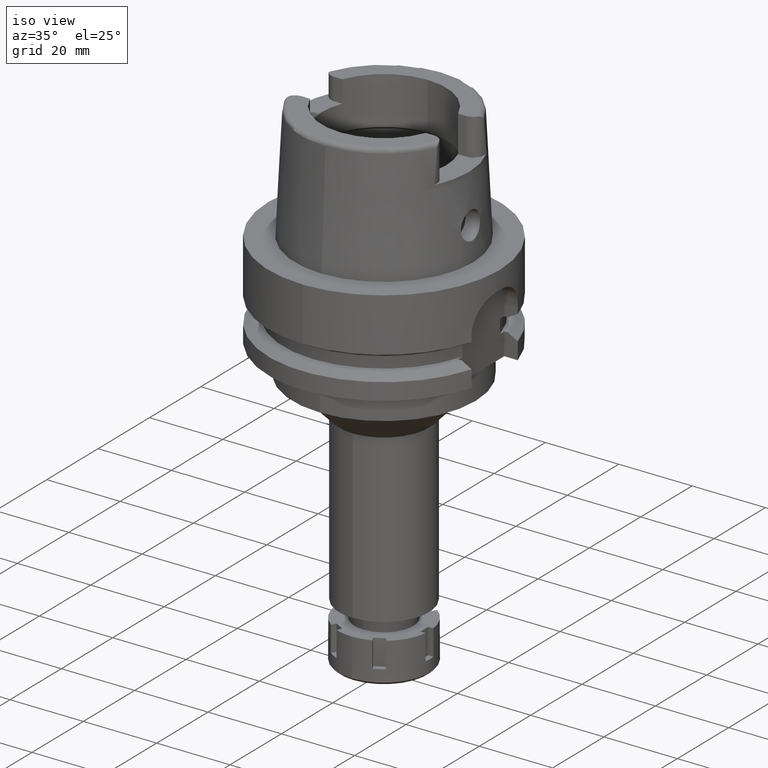
[diagram: clean part render]
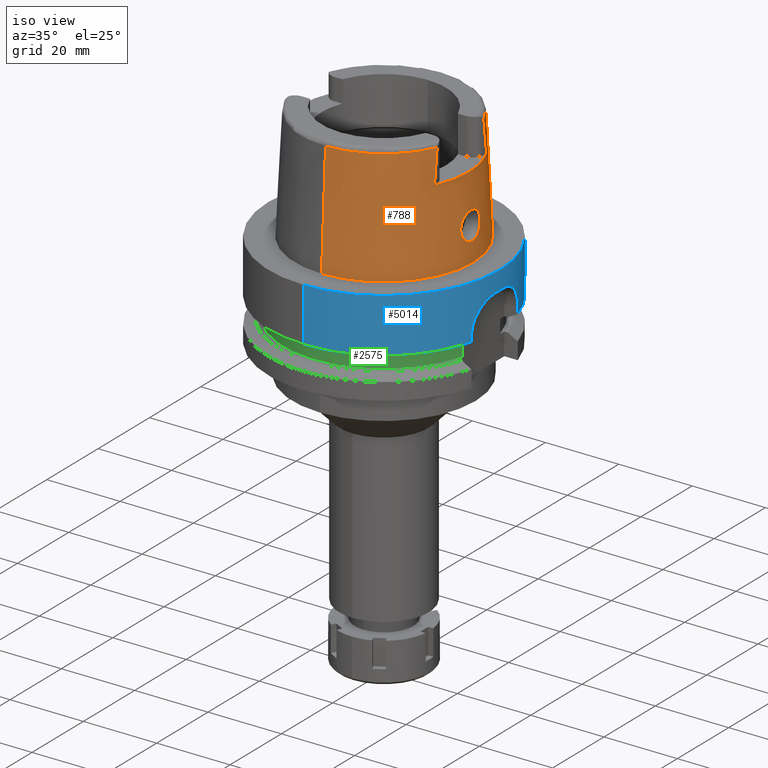
[diagram: same view with three faces highlighted in distinct colors, each labeled with its STEP entity id]
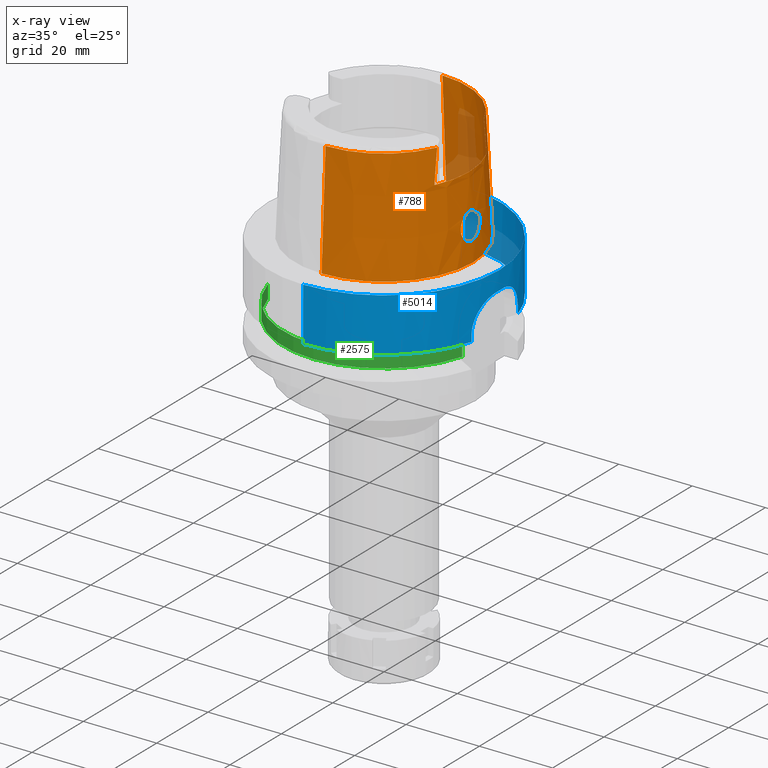
[diagram: x-ray of the same camera — body ghosted, the three highlighted faces saturated]
A machine part, iso view with three faces highlighted in distinct colors.
The next image is the same camera in x-ray (body ghosted, the three faces saturated) — at least one of them is partly hidden behind the body in this view.
Their STEP definitions:

[orange] entity #788 — the highlighted conical surface has half-angle 2.862 deg.
#8 = CIRCLE ( 'NONE', #2491, 22.77198729362000407 ) ;
#28 = CARTESIAN_POINT ( 'NONE',  ( 23.55519943339910682, -3.738331241689983209, 9.301640923586873555 ) ) ;
#56 = CARTESIAN_POINT ( 'NONE',  ( 23.59346375484054192, -2.499029006934169406, 11.79713784507217866 ) ) ;
#87 = CARTESIAN_POINT ( 'NONE',  ( 24.02798104288690340, 0.9484192892176613876, 5.369793361484922478 ) ) ;
#109 = CARTESIAN_POINT ( 'NONE',  ( 20.87000236792000152, -9.149994681381000916, 30.54552122894999755 ) ) ;
#118 = CARTESIAN_POINT ( 'NONE',  ( 23.90984263681423272, 2.248548729215313458, 5.996391628895045400 ) ) ;
#218 = CARTESIAN_POINT ( 'NONE',  ( 23.99476800494585760, -1.442356391557060080, 5.538475348073803595 ) ) ;
#238 = CARTESIAN_POINT ( 'NONE',  ( 23.62274845126830769, 1.989707693370512676, 12.18083538750419414 ) ) ;
#258 = CARTESIAN_POINT ( 'NONE',  ( 23.65921489799462307, -1.129950462299847969, 12.57627948546983632 ) ) ;
#269 = CARTESIAN_POINT ( 'NONE',  ( 23.65772684275554738, 3.565488193654942073, 7.807636789312428327 ) ) ;
#298 = CARTESIAN_POINT ( 'NONE',  ( 23.53964948623935882, 3.466913581508941800, 10.42935265212965668 ) ) ;
#300 = B_SPLINE_CURVE_WITH_KNOTS ( 'NONE', 3,
 ( #3601, #5492, #1834, #897 ),
 .UNSPECIFIED., .F., .F.,
 ( 4, 4 ),
 ( 0.0000000000000000000, 1.000000000000000000 ),
 .UNSPECIFIED. ) ;
#303 = CARTESIAN_POINT ( 'NONE',  ( 0.0000000000000000000, 0.0000000000000000000, 30.85992712280000205 ) ) ;
#308 = B_SPLINE_CURVE_WITH_KNOTS ( 'NONE', 3,
 ( #5896, #2095, #4007, #2623, #4500, #258, #4993, #2155, #4040, #1698, #3578, #2653, #4531, #1833, #4175, #3289, #990, #6069, #3717, #5610, #785, #4262, #4294, #4230, #5168, #56, #5140, #4676, #2681, #5640, #2851, #1965, #2293, #1373, #927, #5904, #2818, #4559, #4766, #524, #3319, #402, #1400, #1925, #3843, #28, #5026, #2880, #3260, #896, #959, #1256, #1865, #2356, #2789, #4700, #3808, #3151, #5701, #433, #2417, #2320, #4202, #6094, #1462, #3748, #462, #1891, #491, #3775, #3350, #5236, #5670, #1430, #5197, #4735, #2386, #2023, #589, #3908, #5791, #5762, #5268, #2113, #1056, #1026, #4394, #1526, #218, #5395, #5728, #3378, #3011 ),
 .UNSPECIFIED., .F., .F.,
 ( 4, 2, 2, 1, 1, 1, 2, 2, 2, 2, 1, 1, 2, 2, 2, 1, 1, 2, 2, 2, 2, 1, 1, 1, 2, 2, 2, 2, 1, 2, 2, 2, 2, 1, 1, 1, 2, 2, 2, 2, 1, 1, 2, 2, 2, 1, 1, 2, 2, 2, 2, 1, 1, 1, 2, 2, 4 ),
 ( 0.0000000000000000000, 0.06249999999999879263, 0.09374999999999820977, 0.1093749999999980294, 0.1171874999999979738, 0.1210937499999979600, 0.1230468749999978906, 0.1249999999999978073, 0.1562499999999984457, 0.1718749999999986677, 0.1796874999999986955, 0.1835937499999987510, 0.1855468749999989453, 0.1874999999999991118, 0.2187499999999998890, 0.2343750000000002498, 0.2421875000000004163, 0.2460937500000005274, 0.2500000000000006106, 0.3125000000000009437, 0.3437500000000011657, 0.3593750000000012768, 0.3671875000000015543, 0.3710937500000017208, 0.3730468750000017764, 0.3750000000000018319, 0.4375000000000006661, 0.4687500000000000555, 0.4843749999999995004, 0.4921874999999990563, 0.4999999999999985567, 0.5624999999999930056, 0.5937499999999902300, 0.6093749999999885647, 0.6171874999999877875, 0.6210937499999873435, 0.6230468749999872324, 0.6249999999999870104, 0.6562499999999845679, 0.6718749999999833467, 0.6796874999999827915, 0.6835937499999825695, 0.6855468749999825695, 0.6874999999999824585, 0.7187499999999837907, 0.7343749999999844569, 0.7421874999999849010, 0.7460937499999851230, 0.7499999999999854561, 0.8124999999999897859, 0.8437499999999918954, 0.8593749999999928946, 0.8671874999999934497, 0.8710937499999936717, 0.8730468749999937828, 0.8749999999999938938, 1.000000000000000000 ),
 .UNSPECIFIED. ) ;
#318 = B_SPLINE_CURVE_WITH_KNOTS ( 'NONE', 3,
 ( #5366, #4059, #1128, #5017 ),
 .UNSPECIFIED., .F., .F.,
 ( 4, 4 ),
 ( 0.0000000000000000000, 1.000000000000000000 ),
 .UNSPECIFIED. ) ;
#330 = CARTESIAN_POINT ( 'NONE',  ( 23.57815872405809188, 2.743184861563106036, 11.55727339859409319 ) ) ;
#360 = CARTESIAN_POINT ( 'NONE',  ( 23.70836361972935791, 3.372653304107593009, 7.358478468461626676 ) ) ;
#402 = CARTESIAN_POINT ( 'NONE',  ( 23.53728703618767781, -3.562162793667870364, 10.19862509189259825 ) ) ;
#417 = LINE ( 'NONE', #2309, #5216 ) ;
#433 = CARTESIAN_POINT ( 'NONE',  ( 23.68191853850887441, -3.475036303287280415, 7.590499738830363441 ) ) ;
#462 = CARTESIAN_POINT ( 'NONE',  ( 23.75046709808644252, -3.189550932065133182, 7.027354285361793629 ) ) ;
#491 = CARTESIAN_POINT ( 'NONE',  ( 23.76036173158187736, -3.142834868265225179, 6.954232104364317379 ) ) ;
#523 = EDGE_CURVE ( 'NONE', #1104, #3131, #3200, .T. ) ;
#524 = CARTESIAN_POINT ( 'NONE',  ( 23.53980010194760908, -3.461088423902705102, 10.44340300401176513 ) ) ;
#528 = LINE ( 'NONE', #5794, #3497 ) ;
#547 = CARTESIAN_POINT ( 'NONE',  ( 20.87000000000000099, 10.16755860605000095, 22.00000000000000000 ) ) ;
#549 = CARTESIAN_POINT ( 'NONE',  ( 23.98800127400897253, 1.527522987969908375, 5.573312713418586917 ) ) ;
#582 = CARTESIAN_POINT ( 'NONE',  ( 24.05252611746999847, 0.0000000000000000000, 5.250000000000000000 ) ) ;
#589 = CARTESIAN_POINT ( 'NONE',  ( 23.84797917728451822, -2.667968593131741617, 6.364710161836378610 ) ) ;
#592 = VERTEX_POINT ( 'NONE', #4219 ) ;
#609 = CARTESIAN_POINT ( 'NONE',  ( 23.85335031705327324, 2.634912400020116063, 6.331705383168054091 ) ) ;
#672 = CARTESIAN_POINT ( 'NONE',  ( 23.86625877099326587, 2.552797420031045927, 6.252677496444333016 ) ) ;
#700 = CARTESIAN_POINT ( 'NONE',  ( 23.59443447677175953, 2.478402184347151760, 11.81692689288334996 ) ) ;
#735 = CARTESIAN_POINT ( 'NONE',  ( 23.56990276822293140, 3.750022173303664275, 8.973271947317876140 ) ) ;
#765 = CARTESIAN_POINT ( 'NONE',  ( 23.67751368057999883, 0.0000000000000000000, 12.75000000000000000 ) ) ;
#785 = CARTESIAN_POINT ( 'NONE',  ( 23.61810204950251801, -2.070512918291412152, 12.12658851466022369 ) ) ;
#788 = ADVANCED_FACE ( 'NONE', ( #878, #3237 ), #5964, .T. ) ;
#791 = CARTESIAN_POINT ( 'NONE',  ( 23.57925637418655995, 3.745618707005629933, 8.803410853152271898 ) ) ;
#822 = CARTESIAN_POINT ( 'NONE',  ( 23.77392755787654721, 3.077891112404721685, 6.856935434953732589 ) ) ;
#828 = ORIENTED_EDGE ( 'NONE', *, *, #3719, .T. ) ;
#845 = CARTESIAN_POINT ( 'NONE',  ( 0.0000000000000000000, 0.0000000000000000000, 15.42996356139999925 ) ) ;
#878 = FACE_OUTER_BOUND ( 'NONE', #6105, .T. ) ;
#896 = CARTESIAN_POINT ( 'NONE',  ( 23.56692017806289385, -3.749964723425761814, 9.032332592619168210 ) ) ;
#897 = CARTESIAN_POINT ( 'NONE',  ( 20.87000000000000099, -10.16755860605000095, 22.00000000000000000 ) ) ;
#920 = CARTESIAN_POINT ( 'NONE',  ( 20.87000000000000099, 9.824931699591571643, 25.00129770862796263 ) ) ;
#927 = CARTESIAN_POINT ( 'NONE',  ( 23.54353521055634957, -3.352100776938812476, 10.68202988764953609 ) ) ;
#959 = CARTESIAN_POINT ( 'NONE',  ( 23.57961124714686818, -3.750259092462481458, 8.780843794698196092 ) ) ;
#974 = ORIENTED_EDGE ( 'NONE', *, *, #2084, .T. ) ;
#990 = CARTESIAN_POINT ( 'NONE',  ( 23.62512480498217471, -1.938118134561423345, 12.21050022046270733 ) ) ;
#1015 = CARTESIAN_POINT ( 'NONE',  ( 20.86974092012000170, 9.111384045666000020, 30.85992712280000205 ) ) ;
#1025 = B_SPLINE_CURVE_WITH_KNOTS ( 'NONE', 3,
 ( #547, #920, #2936, #3836 ),
 .UNSPECIFIED., .F., .F.,
 ( 4, 4 ),
 ( 0.0000000000000000000, 1.000000000000000000 ),
 .UNSPECIFIED. ) ;
#1026 = CARTESIAN_POINT ( 'NONE',  ( 23.98860582613205494, -1.516759723115812752, 5.570243383223264289 ) ) ;
#1043 = ORIENTED_EDGE ( 'NONE', *, *, #2997, .T. ) ;
#1056 = CARTESIAN_POINT ( 'NONE',  ( 23.98098755636505430, -1.604378940289086009, 5.609746447636572597 ) ) ;
#1061 = CARTESIAN_POINT ( 'NONE',  ( 24.05252611746999847, 0.0000000000000000000, 5.250000000000000000 ) ) ;
#1100 = EDGE_CURVE ( 'NONE', #5313, #1638, #528, .T. ) ;
#1104 = VERTEX_POINT ( 'NONE', #1061 ) ;
#1116 = CARTESIAN_POINT ( 'NONE',  ( 24.01746172520843814, 1.126861137765841958, 5.422775681787225466 ) ) ;
#1128 = CARTESIAN_POINT ( 'NONE',  ( 20.86991378048580970, 9.124261431929651778, 30.75528263106000182 ) ) ;
#1145 = CARTESIAN_POINT ( 'NONE',  ( 23.92171013142585423, 2.155953918338985531, 5.929931185348334743 ) ) ;
#1175 = CARTESIAN_POINT ( 'NONE',  ( 23.54163012420013601, 3.388262780187095480, 10.61922573870064213 ) ) ;
#1183 = CARTESIAN_POINT ( 'NONE',  ( 20.86989358601000077, -9.124125165059000508, 30.75511517470000200 ) ) ;
#1202 = CARTESIAN_POINT ( 'NONE',  ( 23.55640515222183851, 3.749812182289677498, 9.240359518197866606 ) ) ;
#1236 = CARTESIAN_POINT ( 'NONE',  ( 23.64574017882521417, 1.497393100549959444, 12.43821287616071025 ) ) ;
#1256 = CARTESIAN_POINT ( 'NONE',  ( 23.59485847199320574, -3.730512227144195059, 8.546709434729841348 ) ) ;
#1266 = CARTESIAN_POINT ( 'NONE',  ( 23.56904104623356488, 2.891966873678280869, 11.38819657138289188 ) ) ;
#1277 = EDGE_CURVE ( 'NONE', #1581, #3596, #318, .T. ) ;
#1294 = CARTESIAN_POINT ( 'NONE',  ( 23.53942295038292443, 3.476486743799036105, 10.40591680542112840 ) ) ;
#1373 = CARTESIAN_POINT ( 'NONE',  ( 23.54704533724012094, -3.272407711175973066, 10.83495624433837357 ) ) ;
#1400 = CARTESIAN_POINT ( 'NONE',  ( 23.53848364325384068, -3.633218472931419196, 9.960076488715310816 ) ) ;
#1430 = CARTESIAN_POINT ( 'NONE',  ( 23.81419400155129651, -2.864590717829285982, 6.579167763752566067 ) ) ;
#1462 = CARTESIAN_POINT ( 'NONE',  ( 23.73360334670976712, -3.266064281962144378, 7.156170873759588602 ) ) ;
#1489 = CARTESIAN_POINT ( 'NONE',  ( 0.0000000000000000000, 24.31503482328999866, -6.821210263297000155E-13 ) ) ;
#1518 = CARTESIAN_POINT ( 'NONE',  ( 23.94783878495383789, 1.932796562545873620, 5.786311759653081310 ) ) ;
#1526 = CARTESIAN_POINT ( 'NONE',  ( 23.99376232489585803, -1.454714420716624490, 5.543650649844929390 ) ) ;
#1550 = CARTESIAN_POINT ( 'NONE',  ( 23.85944225581079436, 2.596529477133404651, 6.294253392062179486 ) ) ;
#1581 = VERTEX_POINT ( 'NONE', #2354 ) ;
#1610 = CARTESIAN_POINT ( 'NONE',  ( 23.93539030642344301, 2.041482123567275320, 5.854381392037769416 ) ) ;
#1611 = AXIS2_PLACEMENT_3D ( 'NONE', #4915, #2595, #2567 ) ;
#1638 = VERTEX_POINT ( 'NONE', #1489 ) ;
#1641 = CARTESIAN_POINT ( 'NONE',  ( 24.04785086516845283, 0.4709064811435271225, 5.271751952135787178 ) ) ;
#1677 = CARTESIAN_POINT ( 'NONE',  ( 23.63588982970169283, 1.723546054593428467, 12.33101691913684839 ) ) ;
#1698 = CARTESIAN_POINT ( 'NONE',  ( 23.64944363401251337, -1.405229500639134654, 12.47676545091688993 ) ) ;
#1703 = CARTESIAN_POINT ( 'NONE',  ( 23.60564574464255827, 2.288006486578824994, 11.97174863408324441 ) ) ;
#1733 = CARTESIAN_POINT ( 'NONE',  ( 23.57441532620160274, 3.748477401917841956, 8.889409879793024771 ) ) ;
#1742 = ORIENTED_EDGE ( 'NONE', *, *, #4643, .F. ) ;
#1763 = CARTESIAN_POINT ( 'NONE',  ( 23.82423346818682219, 2.811399674941153393, 6.515293080833769679 ) ) ;
#1779 = CARTESIAN_POINT ( 'NONE',  ( 0.0000000000000000000, 0.0000000000000000000, 30.85992712280000205 ) ) ;
#1780 = EDGE_LOOP ( 'NONE', ( #2761, #5303 ) ) ;
#1829 = VERTEX_POINT ( 'NONE', #2573 ) ;
#1833 = CARTESIAN_POINT ( 'NONE',  ( 23.64000542611390188, -1.632459002181276153, 12.37826995487776394 ) ) ;
#1834 = CARTESIAN_POINT ( 'NONE',  ( 20.87000000000000099, -9.824613402788342498, 25.00316005336368619 ) ) ;
#1865 = CARTESIAN_POINT ( 'NONE',  ( 23.62367872108690392, -3.662746688643967907, 8.186544317011385630 ) ) ;
#1891 = CARTESIAN_POINT ( 'NONE',  ( 23.75735871023149670, -3.157136749706495937, 6.976260688039289448 ) ) ;
#1925 = CARTESIAN_POINT ( 'NONE',  ( 23.54564860213842437, -3.703546419536261070, 9.600936562707467203 ) ) ;
#1965 = CARTESIAN_POINT ( 'NONE',  ( 23.56103841948513278, -3.012444345104958288, 11.24675570380215106 ) ) ;
#1988 = CARTESIAN_POINT ( 'NONE',  ( 24.01176376146593938, 1.215884406456121392, 5.451618183784872507 ) ) ;
#2005 = ORIENTED_EDGE ( 'NONE', *, *, #1100, .F. ) ;
#2016 = CARTESIAN_POINT ( 'NONE',  ( 23.88991961688548216, 2.392568807856174651, 6.111765563820938496 ) ) ;
#2023 = CARTESIAN_POINT ( 'NONE',  ( 23.84643334698845152, -2.677278026435293778, 6.374181953616795404 ) ) ;
#2026 = DIRECTION ( 'NONE',  ( -8.032179027593385064E-05, 0.04993928193351242217, -0.9987522523971473776 ) ) ;
#2043 = CARTESIAN_POINT ( 'NONE',  ( 0.0000000000000000000, 0.0000000000000000000, 22.00000000000000000 ) ) ;
#2084 = EDGE_CURVE ( 'NONE', #5313, #3596, #5772, .T. ) ;
#2095 = CARTESIAN_POINT ( 'NONE',  ( 23.67751368058000239, -0.2267582108981443245, 12.75000000000000000 ) ) ;
#2113 = CARTESIAN_POINT ( 'NONE',  ( 23.97386257259308451, -1.680483590769746849, 5.647122221902983519 ) ) ;
#2133 = CARTESIAN_POINT ( 'NONE',  ( 23.62814392043167189, 1.886050207408843216, 12.24352485525471046 ) ) ;
#2155 = CARTESIAN_POINT ( 'NONE',  ( 23.65237191575695519, -1.328823208043429016, 12.50693721827285820 ) ) ;
#2161 = CARTESIAN_POINT ( 'NONE',  ( 23.53836951445197556, 3.543614093444141577, 10.22970631823663368 ) ) ;
#2221 = CARTESIAN_POINT ( 'NONE',  ( 23.68874658704037373, 3.449621150213538545, 7.529035037354002036 ) ) ;
#2249 = CARTESIAN_POINT ( 'NONE',  ( 23.53935252858930127, 3.626613101976408071, 9.962103618107390091 ) ) ;
#2293 = CARTESIAN_POINT ( 'NONE',  ( 23.55004724232763991, -3.212793599421871704, 10.93791519905914278 ) ) ;
#2295 = CIRCLE ( 'NONE', #5758, 23.21499834174998966 ) ;
#2309 = CARTESIAN_POINT ( 'NONE',  ( -0.002481821280835999795, -22.77198688789000158, 30.85992712280000205 ) ) ;
#2319 = ORIENTED_EDGE ( 'NONE', *, *, #3581, .F. ) ;
#2320 = CARTESIAN_POINT ( 'NONE',  ( 23.69426230383480458, -3.429249356158954765, 7.478958277970793489 ) ) ;
#2354 = CARTESIAN_POINT ( 'NONE',  ( 20.86999175384000083, 9.150018522194999449, 30.54599590695999822 ) ) ;
#2356 = CARTESIAN_POINT ( 'NONE',  ( 23.63427703942218017, -3.633806297221627180, 8.065028700740112910 ) ) ;
#2386 = CARTESIAN_POINT ( 'NONE',  ( 23.84284296291814087, -2.698793877948102882, 6.396300776223411866 ) ) ;
#2417 = CARTESIAN_POINT ( 'NONE',  ( 23.68294560506167912, -3.471240225863138740, 7.581185862655159369 ) ) ;
#2474 = CARTESIAN_POINT ( 'NONE',  ( 23.96237037192497610, 1.797043532036138869, 5.708060873857260020 ) ) ;
#2491 = AXIS2_PLACEMENT_3D ( 'NONE', #1779, #2705, #4586 ) ;
#2505 = CARTESIAN_POINT ( 'NONE',  ( 23.83840239716866805, 2.728042604137035809, 6.424049659542041546 ) ) ;
#2560 = CARTESIAN_POINT ( 'NONE',  ( 20.86974110888999689, -9.111383544770999876, 30.85992740332000039 ) ) ;
#2567 = DIRECTION ( 'NONE',  ( 0.0000000000000000000, -1.000000000000000000, 0.0000000000000000000 ) ) ;
#2568 = CARTESIAN_POINT ( 'NONE',  ( 0.0000000000000000000, -22.77198729362000051, 30.85992712280000205 ) ) ;
#2569 = CARTESIAN_POINT ( 'NONE',  ( 24.05252611746998781, 0.2328538954987698362, 5.249999999999999112 ) ) ;
#2573 = CARTESIAN_POINT ( 'NONE',  ( 20.87000000000000099, 10.16755860605000095, 22.00000000000000000 ) ) ;
#2595 = DIRECTION ( 'NONE',  ( 0.0000000000000000000, 0.0000000000000000000, 1.000000000000000000 ) ) ;
#2597 = CARTESIAN_POINT ( 'NONE',  ( 23.58277595341658284, 2.668648057610286450, 11.63455852612283614 ) ) ;
#2623 = CARTESIAN_POINT ( 'NONE',  ( 23.66775432986779748, -0.8248731854265669572, 12.66021305973280420 ) ) ;
#2630 = CARTESIAN_POINT ( 'NONE',  ( 23.58199281999337771, 2.681269565241152009, 11.62171215076430641 ) ) ;
#2653 = CARTESIAN_POINT ( 'NONE',  ( 23.64847108999223835, -1.429874665238398013, 12.46669859167355021 ) ) ;
#2681 = CARTESIAN_POINT ( 'NONE',  ( 23.58503982527171416, -2.633019622727293729, 11.67019554553824001 ) ) ;
#2686 = CARTESIAN_POINT ( 'NONE',  ( 23.80282962696074023, 2.929384204735898223, 6.657988613894720409 ) ) ;
#2705 = DIRECTION ( 'NONE',  ( 0.0000000000000000000, 0.0000000000000000000, -1.000000000000000000 ) ) ;
#2714 = CARTESIAN_POINT ( 'NONE',  ( 23.53956094309466707, 3.470545105274916775, 10.42052061436232080 ) ) ;
#2761 = ORIENTED_EDGE ( 'NONE', *, *, #523, .F. ) ;
#2789 = CARTESIAN_POINT ( 'NONE',  ( 23.65166186988112429, -3.579951962090423212, 7.881742948528048132 ) ) ;
#2818 = CARTESIAN_POINT ( 'NONE',  ( 23.54070462236834516, -3.429160251889746380, 10.51811060055909053 ) ) ;
#2851 = CARTESIAN_POINT ( 'NONE',  ( 23.57101315345009951, -2.850032741580265316, 11.45279781885572135 ) ) ;
#2880 = CARTESIAN_POINT ( 'NONE',  ( 23.56264163504646802, -3.748102060869566099, 9.122931130130035982 ) ) ;
#2916 = VERTEX_POINT ( 'NONE', #2568 ) ;
#2936 = CARTESIAN_POINT ( 'NONE',  ( 20.87000000000000099, 9.485745710466582992, 27.84996233038690150 ) ) ;
#2970 = CARTESIAN_POINT ( 'NONE',  ( 23.85647116298900272, 2.615315025993695031, 6.312491096198701079 ) ) ;
#2997 = EDGE_CURVE ( 'NONE', #4965, #2916, #8, .T. ) ;
#3003 = CARTESIAN_POINT ( 'NONE',  ( 24.00434910351895113, 1.319166372579798630, 5.489439048842177371 ) ) ;
#3011 = CARTESIAN_POINT ( 'NONE',  ( 24.05252611746999847, 0.0000000000000000000, 5.250000000000000000 ) ) ;
#3068 = CARTESIAN_POINT ( 'NONE',  ( 23.63419888010048808, 3.637686758691171640, 8.056254483639017749 ) ) ;
#3075 = CARTESIAN_POINT ( 'NONE',  ( 20.87000236792000152, -9.145647407158000064, 30.58043143532999864 ) ) ;
#3097 = CARTESIAN_POINT ( 'NONE',  ( 23.60282309467923767, 2.336323255032637380, 11.93391500810781203 ) ) ;
#3126 = CARTESIAN_POINT ( 'NONE',  ( 23.66771081689833167, 0.9493654053532081250, 12.66637542139171124 ) ) ;
#3131 = VERTEX_POINT ( 'NONE', #4207 ) ;
#3151 = CARTESIAN_POINT ( 'NONE',  ( 23.67772732152643300, -3.490395462164130880, 7.628826932109240566 ) ) ;
#3158 = CARTESIAN_POINT ( 'NONE',  ( 23.63967596071794830, 1.640542193366385293, 12.37312669075879512 ) ) ;
#3183 = CARTESIAN_POINT ( 'NONE',  ( 23.54084170259682551, 3.656267589100001381, 9.842144795777834076 ) ) ;
#3200 = B_SPLINE_CURVE_WITH_KNOTS ( 'NONE', 3,
 ( #582, #2569, #1641, #3961, #87, #1116, #1988, #3003, #3435, #5844, #3988, #549, #3868, #2474, #4885, #1518, #5327, #4917, #1610, #4354, #5387, #1145, #118, #2016, #3903, #5786, #672, #1550, #2970, #4447, #609, #2505, #1763, #2686, #4595, #4048, #822, #4566, #3643, #4016, #360, #3557, #5033, #2221, #269, #3068, #5532, #5421, #4104, #791, #1733, #4479, #735, #1202, #5477, #3183, #2249, #3611, #2161, #5504, #5060, #1294, #2714, #298, #1175, #4132, #5997, #5907, #1266, #5937, #3585, #330, #6023, #2630, #2597, #3527, #5451, #700, #3097, #1703, #4946, #5969, #238, #2133, #1677, #3158, #4975, #1236, #4509, #3126, #5001, #765 ),
 .UNSPECIFIED., .F., .F.,
 ( 4, 2, 2, 1, 1, 2, 2, 2, 2, 1, 1, 2, 2, 2, 2, 1, 1, 2, 2, 2, 2, 2, 2, 1, 2, 2, 2, 2, 1, 2, 2, 2, 2, 1, 1, 1, 2, 2, 2, 2, 2, 1, 1, 2, 2, 2, 2, 2, 2, 1, 2, 2, 4 ),
 ( 0.0000000000000000000, 0.06249999999999883427, 0.09374999999999827915, 0.1093749999999979738, 0.1171874999999977657, 0.1210937499999976130, 0.1249999999999974742, 0.1562499999999961420, 0.1718749999999955036, 0.1796874999999950873, 0.1835937499999948930, 0.1855468749999948652, 0.1874999999999948652, 0.2187499999999934774, 0.2343749999999928113, 0.2421874999999923395, 0.2460937499999922007, 0.2480468749999921174, 0.2499999999999920619, 0.2812499999999915623, 0.2968749999999912292, 0.3124999999999909517, 0.3437499999999903966, 0.3593749999999901745, 0.3671874999999901190, 0.3749999999999900080, 0.4374999999999901190, 0.4687499999999901745, 0.4843749999999899525, 0.4921874999999901190, 0.4999999999999902300, 0.5624999999999902300, 0.5937499999999902300, 0.6093749999999903411, 0.6171874999999904521, 0.6210937499999907851, 0.6230468749999908962, 0.6249999999999911182, 0.6874999999999986677, 0.7187500000000024425, 0.7343750000000044409, 0.7421875000000051070, 0.7460937500000054401, 0.7480468750000053291, 0.7500000000000053291, 0.7812500000000043299, 0.7968750000000037748, 0.8125000000000032196, 0.8437500000000025535, 0.8593750000000022204, 0.8671875000000021094, 0.8750000000000021094, 1.000000000000000000 ),
 .UNSPECIFIED. ) ;
#3237 = FACE_BOUND ( 'NONE', #1780, .T. ) ;
#3260 = CARTESIAN_POINT ( 'NONE',  ( 23.56540205894376783, -3.749578434525936643, 9.063582110595245211 ) ) ;
#3289 = CARTESIAN_POINT ( 'NONE',  ( 23.62951506729305962, -1.851956551722030442, 12.26147377836487706 ) ) ;
#3319 = CARTESIAN_POINT ( 'NONE',  ( 23.53974494334682532, -3.463226986291149778, 10.43826999061943361 ) ) ;
#3350 = CARTESIAN_POINT ( 'NONE',  ( 23.76351885938688469, -3.127711547397547864, 6.931188750232979423 ) ) ;
#3378 = CARTESIAN_POINT ( 'NONE',  ( 24.05252611746999136, -0.4680684061980205368, 5.249999999999997335 ) ) ;
#3390 = ORIENTED_EDGE ( 'NONE', *, *, #3704, .T. ) ;
#3435 = CARTESIAN_POINT ( 'NONE',  ( 24.00100702863153401, 1.363280311615235885, 5.506546671591251219 ) ) ;
#3497 = VECTOR ( 'NONE', #2026, 1000.000000000000000 ) ;
#3527 = CARTESIAN_POINT ( 'NONE',  ( 23.58323067707592458, 2.661324392408498163, 11.64195217311753972 ) ) ;
#3557 = CARTESIAN_POINT ( 'NONE',  ( 23.69842751701850503, 3.412132144833142533, 7.444092624480780351 ) ) ;
#3565 = CARTESIAN_POINT ( 'NONE',  ( 0.002481821280839999633, 22.77198688789000158, 30.85992712280000205 ) ) ;
#3578 = CARTESIAN_POINT ( 'NONE',  ( 23.64884320520893368, -1.420500984177679449, 12.47055397654410314 ) ) ;
#3581 = EDGE_CURVE ( 'NONE', #1829, #1581, #1025, .T. ) ;
#3585 = CARTESIAN_POINT ( 'NONE',  ( 23.57596720349302544, 2.778757304994551536, 11.51837602191028864 ) ) ;
#3596 = VERTEX_POINT ( 'NONE', #1015 ) ;
#3601 = CARTESIAN_POINT ( 'NONE',  ( 20.87000236792000152, -9.149994681381000916, 30.54552122894999755 ) ) ;
#3611 = CARTESIAN_POINT ( 'NONE',  ( 23.53847169750921964, 3.572829680165428456, 10.14072545661941227 ) ) ;
#3643 = CARTESIAN_POINT ( 'NONE',  ( 23.73884366784988487, 3.242280468077175737, 7.111764599764114791 ) ) ;
#3661 = ORIENTED_EDGE ( 'NONE', *, *, #5240, .F. ) ;
#3704 = EDGE_CURVE ( 'NONE', #1829, #4074, #2295, .T. ) ;
#3717 = CARTESIAN_POINT ( 'NONE',  ( 23.62011333325976992, -2.033338157716948036, 12.15096550055626423 ) ) ;
#3719 = EDGE_CURVE ( 'NONE', #592, #1638, #4257, .T. ) ;
#3748 = CARTESIAN_POINT ( 'NONE',  ( 23.74475789511510371, -3.215732753567722035, 7.070580840563122749 ) ) ;
#3775 = CARTESIAN_POINT ( 'NONE',  ( 23.76237473987955440, -3.133208081980926263, 6.939518404108703464 ) ) ;
#3808 = CARTESIAN_POINT ( 'NONE',  ( 23.67195180264777932, -3.511207508438416003, 7.682499030869834655 ) ) ;
#3836 = CARTESIAN_POINT ( 'NONE',  ( 20.86999175384000083, 9.150018522194999449, 30.54599590695999822 ) ) ;
#3840 = ORIENTED_EDGE ( 'NONE', *, *, #1277, .F. ) ;
#3843 = CARTESIAN_POINT ( 'NONE',  ( 23.54893192981416661, -3.720964223279306538, 9.480994934054669088 ) ) ;
#3868 = CARTESIAN_POINT ( 'NONE',  ( 23.97843536754702143, 1.634845050901289287, 5.622916002733579610 ) ) ;
#3903 = CARTESIAN_POINT ( 'NONE',  ( 23.88292498057402469, 2.441421214926860372, 6.152838082457372515 ) ) ;
#3908 = CARTESIAN_POINT ( 'NONE',  ( 23.88277812629276298, -2.456992568095625273, 6.153110915899230982 ) ) ;
#3961 = CARTESIAN_POINT ( 'NONE',  ( 24.03382510826383012, 0.8289347581739079374, 5.340746145484334129 ) ) ;
#3988 = CARTESIAN_POINT ( 'NONE',  ( 23.99747581683183384, 1.408776846208430245, 5.524650936406791502 ) ) ;
#4007 = CARTESIAN_POINT ( 'NONE',  ( 23.67507384290195205, -0.4630816054414778060, 12.72939098049522499 ) ) ;
#4014 = DIRECTION ( 'NONE',  ( 0.8989877876694615244, 0.4379736951246811505, 0.0000000000000000000 ) ) ;
#4016 = CARTESIAN_POINT ( 'NONE',  ( 23.71845473936051718, 3.330359980197542757, 7.275172097746182232 ) ) ;
#4040 = CARTESIAN_POINT ( 'NONE',  ( 23.65033712925594145, -1.382317070923071212, 12.48599675252301111 ) ) ;
#4048 = CARTESIAN_POINT ( 'NONE',  ( 23.78130041260691030, 3.041403257075681932, 6.805421366311447784 ) ) ;
#4059 = CARTESIAN_POINT ( 'NONE',  ( 20.87000008276668694, 9.137139977363153420, 30.65063926901000357 ) ) ;
#4074 = VERTEX_POINT ( 'NONE', #4315 ) ;
#4104 = CARTESIAN_POINT ( 'NONE',  ( 23.58466627045879349, 3.739699553798095266, 8.716042274838070369 ) ) ;
#4110 = DIRECTION ( 'NONE',  ( 0.0000000000000000000, 0.0000000000000000000, -1.000000000000000000 ) ) ;
#4127 = DIRECTION ( 'NONE',  ( 0.0000000000000000000, 0.0000000000000000000, -1.000000000000000000 ) ) ;
#4132 = CARTESIAN_POINT ( 'NONE',  ( 23.54624522311891610, 3.288668755627062179, 10.81848865005207294 ) ) ;
#4175 = CARTESIAN_POINT ( 'NONE',  ( 23.63226805064198288, -1.795866489624349249, 12.29258957689876652 ) ) ;
#4202 = CARTESIAN_POINT ( 'NONE',  ( 23.70632055464385246, -3.382145758896426546, 7.375591754896430707 ) ) ;
#4207 = CARTESIAN_POINT ( 'NONE',  ( 23.67751368057999883, 0.0000000000000000000, 12.75000000000000000 ) ) ;
#4219 = CARTESIAN_POINT ( 'NONE',  ( 0.0000000000000000000, -24.31503482328999866, -3.801403636316999971E-13 ) ) ;
#4230 = CARTESIAN_POINT ( 'NONE',  ( 23.60608482393553942, -2.286616205226363885, 11.97473154672317541 ) ) ;
#4257 = CIRCLE ( 'NONE', #1611, 24.31503482328999866 ) ;
#4262 = CARTESIAN_POINT ( 'NONE',  ( 23.61763600389896212, -2.079060479096733527, 12.12090798815471260 ) ) ;
#4294 = CARTESIAN_POINT ( 'NONE',  ( 23.61168808906530359, -2.187719735153621947, 12.04820009275881354 ) ) ;
#4315 = CARTESIAN_POINT ( 'NONE',  ( 20.87000000000000099, -10.16755860605000095, 22.00000000000000000 ) ) ;
#4354 = CARTESIAN_POINT ( 'NONE',  ( 23.93378341054934566, 2.055060094668907933, 5.863235154669319549 ) ) ;
#4394 = CARTESIAN_POINT ( 'NONE',  ( 23.99224140819047690, -1.473276549652505762, 5.551482490765188516 ) ) ;
#4447 = CARTESIAN_POINT ( 'NONE',  ( 23.85447938351401120, 2.627846983341488585, 6.324743558956881451 ) ) ;
#4479 = CARTESIAN_POINT ( 'NONE',  ( 23.57131437160877496, 3.749725655220193854, 8.946422785070438977 ) ) ;
#4488 = CARTESIAN_POINT ( 'NONE',  ( 20.87000236792000152, -9.149994681381000916, 30.54552122894999755 ) ) ;
#4500 = CARTESIAN_POINT ( 'NONE',  ( 23.66470453277023367, -0.9466574754397447666, 12.63078388863482715 ) ) ;
#4509 = CARTESIAN_POINT ( 'NONE',  ( 23.64687973157479561, 1.469569914914745423, 12.45021192470075100 ) ) ;
#4531 = CARTESIAN_POINT ( 'NONE',  ( 23.64446824366192956, -1.530044846406797276, 12.42518288873786680 ) ) ;
#4559 = CARTESIAN_POINT ( 'NONE',  ( 23.54015134852421909, -3.448010423306683503, 10.47446388218021163 ) ) ;
#4566 = CARTESIAN_POINT ( 'NONE',  ( 23.75271187247889770, 3.178904161253136351, 7.007106111034716811 ) ) ;
#4586 = DIRECTION ( 'NONE',  ( 0.9164655183265837390, -0.4001136759951928745, 0.0000000000000000000 ) ) ;
#4595 = CARTESIAN_POINT ( 'NONE',  ( 23.79566993859317847, 2.967537881683025347, 6.706524891704926716 ) ) ;
#4605 = CARTESIAN_POINT ( 'NONE',  ( 20.86997922117000215, -9.137001282772999389, 30.65041084578000152 ) ) ;
#4643 = EDGE_CURVE ( 'NONE', #4812, #4074, #300, .T. ) ;
#4676 = CARTESIAN_POINT ( 'NONE',  ( 23.58644423555615433, -2.611026790540400988, 11.69170497717702339 ) ) ;
#4700 = CARTESIAN_POINT ( 'NONE',  ( 23.66072612334960823, -3.550415313412851326, 7.789850362978726572 ) ) ;
#4723 = DIRECTION ( 'NONE',  ( 8.032179027582384478E-05, -0.04993928193351242217, -0.9987522523971473776 ) ) ;
#4735 = CARTESIAN_POINT ( 'NONE',  ( 23.83745983003889535, -2.730862899668507371, 6.429678184190200874 ) ) ;
#4766 = CARTESIAN_POINT ( 'NONE',  ( 23.53993749829405502, -3.455884301027504879, 10.45581901621565812 ) ) ;
#4812 = VERTEX_POINT ( 'NONE', #109 ) ;
#4849 = ORIENTED_EDGE ( 'NONE', *, *, #6011, .T. ) ;
#4870 = AXIS2_PLACEMENT_3D ( 'NONE', #845, #4127, #5210 ) ;
#4885 = CARTESIAN_POINT ( 'NONE',  ( 23.95672935072942877, 1.851309033720620612, 5.738231538720552471 ) ) ;
#4915 = CARTESIAN_POINT ( 'NONE',  ( 0.0000000000000000000, 0.0000000000000000000, -6.821210263297000155E-13 ) ) ;
#4917 = CARTESIAN_POINT ( 'NONE',  ( 23.93778724292263504, 2.021111643302681671, 5.841192553100023055 ) ) ;
#4946 = CARTESIAN_POINT ( 'NONE',  ( 23.61134393255749941, 2.189575038564256282, 12.04499996343164980 ) ) ;
#4965 = VERTEX_POINT ( 'NONE', #2560 ) ;
#4973 = DIRECTION ( 'NONE',  ( 0.0000000000000000000, 0.0000000000000000000, -1.000000000000000000 ) ) ;
#4975 = CARTESIAN_POINT ( 'NONE',  ( 23.64333185630606948, 1.554986753244104181, 12.41255184233255626 ) ) ;
#4993 = CARTESIAN_POINT ( 'NONE',  ( 23.65624134582449756, -1.221748073562828552, 12.54643866987770728 ) ) ;
#5001 = CARTESIAN_POINT ( 'NONE',  ( 23.67751368058001304, 0.4543756190881092505, 12.75000000000000355 ) ) ;
#5017 = CARTESIAN_POINT ( 'NONE',  ( 20.86974092012000170, 9.111384045666000020, 30.85992712280000205 ) ) ;
#5026 = CARTESIAN_POINT ( 'NONE',  ( 23.55866881320941175, -3.744826203426357303, 9.212102494771301053 ) ) ;
#5033 = CARTESIAN_POINT ( 'NONE',  ( 23.69183789674911722, 3.437804351436141825, 7.501669336813312938 ) ) ;
#5060 = CARTESIAN_POINT ( 'NONE',  ( 23.53922653108039853, 3.485325964180100211, 10.38399322218661958 ) ) ;
#5067 = EDGE_CURVE ( 'NONE', #3131, #1104, #308, .T. ) ;
#5097 = DIRECTION ( 'NONE',  ( 0.0000000000000000000, 1.000000000000000000, 0.0000000000000000000 ) ) ;
#5140 = CARTESIAN_POINT ( 'NONE',  ( 23.58855060593720410, -2.577839038535194582, 11.72376616001229266 ) ) ;
#5168 = CARTESIAN_POINT ( 'NONE',  ( 23.59767208478201894, -2.429186587014348753, 11.85750553573183375 ) ) ;
#5197 = CARTESIAN_POINT ( 'NONE',  ( 23.82491628923761340, -2.804240230071263440, 6.508935229224912078 ) ) ;
#5210 = DIRECTION ( 'NONE',  ( 0.0000000000000000000, -1.000000000000000000, 0.0000000000000000000 ) ) ;
#5216 = VECTOR ( 'NONE', #4723, 1000.000000000000000 ) ;
#5236 = CARTESIAN_POINT ( 'NONE',  ( 23.77857031745603322, -3.055137140846010624, 6.821956878852279971 ) ) ;
#5240 = EDGE_CURVE ( 'NONE', #4965, #4812, #5628, .T. ) ;
#5268 = CARTESIAN_POINT ( 'NONE',  ( 23.95881922070590164, -1.833683762657124072, 5.726872774641920572 ) ) ;
#5303 = ORIENTED_EDGE ( 'NONE', *, *, #5067, .F. ) ;
#5313 = VERTEX_POINT ( 'NONE', #3565 ) ;
#5327 = CARTESIAN_POINT ( 'NONE',  ( 23.94328624357046564, 1.973562329397223314, 5.811057781862602134 ) ) ;
#5366 = CARTESIAN_POINT ( 'NONE',  ( 20.86999175384000083, 9.150018522194999449, 30.54599590695999822 ) ) ;
#5384 = AXIS2_PLACEMENT_3D ( 'NONE', #303, #4110, #5097 ) ;
#5387 = CARTESIAN_POINT ( 'NONE',  ( 23.93281641835938700, 2.063176751936310449, 5.868571491781304772 ) ) ;
#5395 = CARTESIAN_POINT ( 'NONE',  ( 23.99516998806232948, -1.437390867898680424, 5.536407788892807602 ) ) ;
#5421 = CARTESIAN_POINT ( 'NONE',  ( 23.59624452738620093, 3.723513421129406975, 8.539688396739348875 ) ) ;
#5430 = CARTESIAN_POINT ( 'NONE',  ( 20.86974110888999689, -9.111383544770999876, 30.85992740332000039 ) ) ;
#5451 = CARTESIAN_POINT ( 'NONE',  ( 23.58894784081007145, 2.569290502142429489, 11.73428250604435341 ) ) ;
#5477 = CARTESIAN_POINT ( 'NONE',  ( 23.54801508448187874, 3.727006141541219897, 9.481588394325845215 ) ) ;
#5492 = CARTESIAN_POINT ( 'NONE',  ( 20.87000000000000099, -9.485453096008674478, 27.85166712968035441 ) ) ;
#5504 = CARTESIAN_POINT ( 'NONE',  ( 23.53884220773010938, 3.505438276618994653, 10.33271670158016065 ) ) ;
#5532 = CARTESIAN_POINT ( 'NONE',  ( 23.60497465118179505, 3.706922875449379262, 8.419954369060294042 ) ) ;
#5610 = CARTESIAN_POINT ( 'NONE',  ( 23.61890982284651130, -2.055623000137161149, 12.13639818360551281 ) ) ;
#5628 = B_SPLINE_CURVE_WITH_KNOTS ( 'NONE', 3,
 ( #5430, #6007, #1183, #4605, #3075, #4488 ),
 .UNSPECIFIED., .F., .F.,
 ( 4, 1, 1, 4 ),
 ( 0.0000000000000000000, 0.3333333333333000081, 0.6666666666667000474, 1.000000000000000000 ),
 .UNSPECIFIED. ) ;
#5640 = CARTESIAN_POINT ( 'NONE',  ( 23.58442404597242614, -2.642611892392309425, 11.66071434738991286 ) ) ;
#5670 = CARTESIAN_POINT ( 'NONE',  ( 23.79278851779836756, -2.981752073878448872, 6.722525662749332831 ) ) ;
#5701 = CARTESIAN_POINT ( 'NONE',  ( 23.68023740373792307, -3.481214922823460789, 7.605829652978862043 ) ) ;
#5728 = CARTESIAN_POINT ( 'NONE',  ( 24.03360450776849788, -0.9585210111916916409, 5.338868690817696105 ) ) ;
#5758 = AXIS2_PLACEMENT_3D ( 'NONE', #2043, #4973, #4014 ) ;
#5762 = CARTESIAN_POINT ( 'NONE',  ( 23.94773247365682067, -1.937152110032898999, 5.786710874407876126 ) ) ;
#5772 = CIRCLE ( 'NONE', #5384, 22.77198729362000051 ) ;
#5786 = CARTESIAN_POINT ( 'NONE',  ( 23.87190258160399736, 2.515533678077416013, 6.218690515636870586 ) ) ;
#5791 = CARTESIAN_POINT ( 'NONE',  ( 23.91129869513670059, -2.248313866700351937, 5.988567456339601414 ) ) ;
#5794 = CARTESIAN_POINT ( 'NONE',  ( 0.002481821280839999633, 22.77198688789000158, 30.85992712280000205 ) ) ;
#5844 = CARTESIAN_POINT ( 'NONE',  ( 23.99874245329798228, 1.392653437091158075, 5.518151960529282363 ) ) ;
#5896 = CARTESIAN_POINT ( 'NONE',  ( 23.67751368057999883, 0.0000000000000000000, 12.75000000000000000 ) ) ;
#5904 = CARTESIAN_POINT ( 'NONE',  ( 23.54202832995133221, -3.389517430550574861, 10.60594019835621538 ) ) ;
#5907 = CARTESIAN_POINT ( 'NONE',  ( 23.56153800160927148, 3.016704064190604662, 11.23155050069812511 ) ) ;
#5937 = CARTESIAN_POINT ( 'NONE',  ( 23.57171046612646848, 2.848114043925953354, 11.44040697097121217 ) ) ;
#5964 = CONICAL_SURFACE ( 'NONE', #4870, 23.54351105844999736, 0.04996004983832824653 ) ;
#5969 = CARTESIAN_POINT ( 'NONE',  ( 23.61430795304820762, 2.137906783478360939, 12.08145942728788746 ) ) ;
#5997 = CARTESIAN_POINT ( 'NONE',  ( 23.55720959193228481, 3.090759172808191124, 11.12712094727908330 ) ) ;
#6007 = CARTESIAN_POINT ( 'NONE',  ( 20.86979790990000083, -9.115619349886999956, 30.82499136751000179 ) ) ;
#6011 = EDGE_CURVE ( 'NONE', #2916, #592, #417, .T. ) ;
#6023 = CARTESIAN_POINT ( 'NONE',  ( 23.58082601384383281, 2.700086086739161395, 11.60242155585425827 ) ) ;
#6069 = CARTESIAN_POINT ( 'NONE',  ( 23.62286447700487813, -1.981704388091479085, 12.18393834419496713 ) ) ;
#6094 = CARTESIAN_POINT ( 'NONE',  ( 23.72651879115596429, -3.296909304022569653, 7.212077445372758966 ) ) ;
#6105 = EDGE_LOOP ( 'NONE', ( #1742, #3661, #1043, #4849, #828, #2005, #974, #3840, #2319, #3390 ) ) ;

[blue] entity #5014 — the highlighted cylindrical surface (partial cylindrical patch) has radius 31.5 mm, axis along (0, 0, 1).
#3 = CARTESIAN_POINT ( 'NONE',  ( 31.37983803264302196, -2.753587539207738466, -5.190256653161281264 ) ) ;
#12 = CARTESIAN_POINT ( 'NONE',  ( 30.57818467427962261, 7.565479979367585983, -8.424676495378671248 ) ) ;
#35 = CARTESIAN_POINT ( 'NONE',  ( 30.79496185727961688, -6.627244182485013901, -7.313677366384066403 ) ) ;
#43 = CARTESIAN_POINT ( 'NONE',  ( 31.20904668368718049, 4.272011439365987151, -5.699293367552752620 ) ) ;
#67 = CARTESIAN_POINT ( 'NONE',  ( 30.59540931376002959, -7.495137039573426918, -8.329190839480803632 ) ) ;
#74 = AXIS2_PLACEMENT_3D ( 'NONE', #5968, #3701, #2744 ) ;
#80 = CARTESIAN_POINT ( 'NONE',  ( 0.0000000000000000000, 0.0000000000000000000, -14.62250092523999889 ) ) ;
#101 = CARTESIAN_POINT ( 'NONE',  ( 30.55921754038898186, -7.640957053954410938, -8.539315084846389681 ) ) ;
#106 = EDGE_CURVE ( 'NONE', #2980, #229, #1600, .T. ) ;
#121 = ORIENTED_EDGE ( 'NONE', *, *, #1927, .T. ) ;
#133 = CARTESIAN_POINT ( 'NONE',  ( 30.81654570471351917, -6.526148713749511998, -7.215067381093759558 ) ) ;
#162 = CARTESIAN_POINT ( 'NONE',  ( 30.57077341640547985, -7.594653217045017612, -8.471018806919600408 ) ) ;
#229 = VERTEX_POINT ( 'NONE', #3588 ) ;
#353 = EDGE_CURVE ( 'NONE', #4986, #1572, #4425, .T. ) ;
#359 = CARTESIAN_POINT ( 'NONE',  ( 30.35000982270406666, 8.433709040965442938, -10.04360748978478490 ) ) ;
#363 = VECTOR ( 'NONE', #4003, 1000.000000000000114 ) ;
#415 = CARTESIAN_POINT ( 'NONE',  ( 30.51689320990851684, 7.808567972047013583, -8.798566493915924269 ) ) ;
#445 = CARTESIAN_POINT ( 'NONE',  ( 31.48412298285999711, 1.000000000000000000, -5.000000000000000000 ) ) ;
#466 = EDGE_CURVE ( 'NONE', #5007, #1442, #2104, .T. ) ;
#480 = CARTESIAN_POINT ( 'NONE',  ( 30.53364897861121463, 7.742591106720150940, -8.694228431878196162 ) ) ;
#498 = CARTESIAN_POINT ( 'NONE',  ( 30.41688893202178789, -8.189594580072611762, -9.489214289815921077 ) ) ;
#508 = CARTESIAN_POINT ( 'NONE',  ( 30.97015816740540117, 5.752101951090105025, -6.563631367266330230 ) ) ;
#532 = CARTESIAN_POINT ( 'NONE',  ( 30.86012935381727118, -6.316167547011414030, -7.021294721750678924 ) ) ;
#540 = CARTESIAN_POINT ( 'NONE',  ( 30.66881045057026611, 7.189805704460476399, -7.930153382625340086 ) ) ;
#550 = VECTOR ( 'NONE', #2645, 1000.000000000000227 ) ;
#572 = EDGE_LOOP ( 'NONE', ( #3758, #2399, #121, #5129, #4653, #4492, #4416, #1496, #2924, #2815 ) ) ;
#594 = CARTESIAN_POINT ( 'NONE',  ( 30.79286367175826555, -6.636987437476533636, -7.323339109613427489 ) ) ;
#626 = CARTESIAN_POINT ( 'NONE',  ( 31.02903992300991831, -5.426663539710465223, -6.336318503509422051 ) ) ;
#633 = CARTESIAN_POINT ( 'NONE',  ( 0.0000000000000000000, -31.50000000000000000, 1.705302565823999875E-13 ) ) ;
#790 = CARTESIAN_POINT ( 'NONE',  ( 30.18691769624999566, 9.000000000000003553, -12.51075603859298369 ) ) ;
#821 = CARTESIAN_POINT ( 'NONE',  ( 30.31051386847492779, 8.575371121630901428, -10.42216267168092436 ) ) ;
#826 = EDGE_CURVE ( 'NONE', #3993, #3286, #5193, .T. ) ;
#851 = CARTESIAN_POINT ( 'NONE',  ( 30.34481845122283161, 8.452419042356567047, -10.09079863119763942 ) ) ;
#864 = CIRCLE ( 'NONE', #4717, 31.49999999999999645 ) ;
#882 = CARTESIAN_POINT ( 'NONE',  ( 30.54648092645956936, 7.691727777636407026, -8.615833132391985671 ) ) ;
#906 = CARTESIAN_POINT ( 'NONE',  ( 31.24800644890297718, -3.976452982474274034, -5.574285070998746150 ) ) ;
#912 = CARTESIAN_POINT ( 'NONE',  ( 30.95300948501629890, 5.843543023746158305, -6.631537694874284128 ) ) ;
#968 = CARTESIAN_POINT ( 'NONE',  ( 30.36717163083527637, -8.371667016951187534, -9.892119319342151940 ) ) ;
#1009 = CARTESIAN_POINT ( 'NONE',  ( 30.68943152462541235, 7.101335418350042339, -7.823598987897093515 ) ) ;
#1032 = CARTESIAN_POINT ( 'NONE',  ( 31.02954890145096201, -5.423751937694139436, -6.334384946952814843 ) ) ;
#1066 = CARTESIAN_POINT ( 'NONE',  ( 30.58359756888234315, -7.543053232509480566, -8.396382808928413155 ) ) ;
#1086 = CARTESIAN_POINT ( 'NONE',  ( 31.48412298285999711, 1.000000000000000000, -5.000000000000000000 ) ) ;
#1115 = DIRECTION ( 'NONE',  ( 0.0000000000000000000, 0.0000000000000000000, 1.000000000000000000 ) ) ;
#1227 = CYLINDRICAL_SURFACE ( 'NONE', #4415, 31.50000000000000000 ) ;
#1322 = CIRCLE ( 'NONE', #3108, 31.50000000000000000 ) ;
#1323 = CARTESIAN_POINT ( 'NONE',  ( 31.48412298285999711, -1.000000000000000000, -5.000000000000000000 ) ) ;
#1369 = CIRCLE ( 'NONE', #74, 31.50000000000000000 ) ;
#1383 = CARTESIAN_POINT ( 'NONE',  ( 31.24174590230201076, -4.025337116916134939, -5.594097702209912093 ) ) ;
#1386 = CARTESIAN_POINT ( 'NONE',  ( 30.77085634190093799, 6.738318968586738400, -7.425737855696081802 ) ) ;
#1415 = CARTESIAN_POINT ( 'NONE',  ( 31.23102691681657817, 4.107687165831699794, -5.628274657994341901 ) ) ;
#1442 = VERTEX_POINT ( 'NONE', #4144 ) ;
#1447 = CARTESIAN_POINT ( 'NONE',  ( 31.00718285912624239, 5.549975492836302315, -6.419869715661040033 ) ) ;
#1470 = CARTESIAN_POINT ( 'NONE',  ( 30.43236337966654048, -8.132047224215904535, -9.373512262557255781 ) ) ;
#1479 = CARTESIAN_POINT ( 'NONE',  ( 31.19739758799188323, 4.355878833999738298, -5.737632879642248440 ) ) ;
#1496 = ORIENTED_EDGE ( 'NONE', *, *, #2923, .T. ) ;
#1499 = CARTESIAN_POINT ( 'NONE',  ( 30.36476704707465402, -8.380384020247266363, -9.912932118952278771 ) ) ;
#1509 = CARTESIAN_POINT ( 'NONE',  ( 30.55038099276190167, 7.676211606555850331, -8.592255890657122919 ) ) ;
#1533 = CARTESIAN_POINT ( 'NONE',  ( 30.79860796378187615, -6.610268223308549906, -7.296927788865145814 ) ) ;
#1567 = CARTESIAN_POINT ( 'NONE',  ( 31.03817553257409045, -5.374181652352483241, -6.301707979127693093 ) ) ;
#1572 = VERTEX_POINT ( 'NONE', #3841 ) ;
#1597 = CARTESIAN_POINT ( 'NONE',  ( 30.82691733084026708, -6.476746860209185996, -7.168429987152320493 ) ) ;
#1600 = LINE ( 'NONE', #2122, #363 ) ;
#1679 = CARTESIAN_POINT ( 'NONE',  ( 0.0000000000000000000, -31.50000000000000000, 1.042129345780999972E-13 ) ) ;
#1691 = LINE ( 'NONE', #3113, #550 ) ;
#1762 = CARTESIAN_POINT ( 'NONE',  ( 30.29323698418542676, 8.636548043287437082, -10.61239693702995623 ) ) ;
#1775 = CARTESIAN_POINT ( 'NONE',  ( 30.18691773962000013, -8.999999854527001020, -14.62250209850999916 ) ) ;
#1786 = CARTESIAN_POINT ( 'NONE',  ( 30.38193792833731877, 8.318396713660558106, -9.759951468092479487 ) ) ;
#1811 = CARTESIAN_POINT ( 'NONE',  ( 31.46865533001462367, -1.486985484402890023, -5.000000000000000000 ) ) ;
#1843 = CARTESIAN_POINT ( 'NONE',  ( 31.26889387098673367, -3.809231924560377625, -5.508914107401526650 ) ) ;
#1849 = CARTESIAN_POINT ( 'NONE',  ( 31.17339057871290464, 4.525307559211380948, -5.817535076985737241 ) ) ;
#1878 = CARTESIAN_POINT ( 'NONE',  ( 30.61110709306651145, 7.432969171076218906, -8.237115876415852966 ) ) ;
#1901 = CARTESIAN_POINT ( 'NONE',  ( 31.29554393306633386, -3.585761567403443983, -5.427284685752000293 ) ) ;
#1927 = EDGE_CURVE ( 'NONE', #5007, #4986, #1322, .T. ) ;
#1933 = CARTESIAN_POINT ( 'NONE',  ( 30.62012562242636093, -7.394089430959303932, -8.190772010373256862 ) ) ;
#1943 = CARTESIAN_POINT ( 'NONE',  ( 30.78066401769662264, 6.693334816304612467, -7.379859610863304553 ) ) ;
#1981 = CARTESIAN_POINT ( 'NONE',  ( 30.72244306803898795, 6.956267087528607895, -7.658816824583557725 ) ) ;
#1999 = CARTESIAN_POINT ( 'NONE',  ( 31.21292593677575766, -4.248734822457580051, -5.685594909634296812 ) ) ;
#2030 = CARTESIAN_POINT ( 'NONE',  ( 30.36317135234791209, -8.386166384658807260, -9.926792794708777734 ) ) ;
#2045 = DIRECTION ( 'NONE',  ( 0.0000000000000000000, 2.672583210395999918E-14, -1.000000000000000000 ) ) ;
#2061 = CARTESIAN_POINT ( 'NONE',  ( 30.63806025341855133, -7.319774164274159389, -8.093101602375737613 ) ) ;
#2104 = LINE ( 'NONE', #3034, #5516 ) ;
#2111 = CARTESIAN_POINT ( 'NONE',  ( 0.0000000000000000000, 0.0000000000000000000, 1.705302565823999875E-13 ) ) ;
#2122 = CARTESIAN_POINT ( 'NONE',  ( 30.18691748978999811, 9.000000692495998322, -14.62249534000999951 ) ) ;
#2183 = CARTESIAN_POINT ( 'NONE',  ( 0.0000000000000000000, 31.50000000000000000, 1.042129345780999972E-13 ) ) ;
#2248 = CARTESIAN_POINT ( 'NONE',  ( 30.35349842433944545, 8.421126156858113276, -10.01216243008687279 ) ) ;
#2307 = CARTESIAN_POINT ( 'NONE',  ( 30.54833299910371736, 7.684362157110438574, -8.604624866371221259 ) ) ;
#2367 = VERTEX_POINT ( 'NONE', #1775 ) ;
#2395 = CARTESIAN_POINT ( 'NONE',  ( 30.24514069726388854, -8.813548195890987813, -10.95938563174745362 ) ) ;
#2399 = ORIENTED_EDGE ( 'NONE', *, *, #466, .F. ) ;
#2402 = CARTESIAN_POINT ( 'NONE',  ( 31.01573237786627146, 5.502194479297449980, -6.387106288706990043 ) ) ;
#2456 = CARTESIAN_POINT ( 'NONE',  ( 31.08043162659346237, -5.124184679274995879, -6.144640937693774951 ) ) ;
#2486 = CARTESIAN_POINT ( 'NONE',  ( 30.56460039430381670, -7.619408797698916658, -8.507373050545917081 ) ) ;
#2520 = CARTESIAN_POINT ( 'NONE',  ( 30.91929972450644115, -6.019387996239566441, -6.769194493441120564 ) ) ;
#2603 = DIRECTION ( 'NONE',  ( 0.0000000000000000000, 0.0000000000000000000, -1.000000000000000000 ) ) ;
#2645 = DIRECTION ( 'NONE',  ( 2.673094881816978300E-08, 8.965943668253919096E-08, -0.9999999999999955591 ) ) ;
#2685 = CARTESIAN_POINT ( 'NONE',  ( 30.26134119780478926, 8.748740386191041551, -10.99324140904386837 ) ) ;
#2688 = AXIS2_PLACEMENT_3D ( 'NONE', #5843, #1115, #3002 ) ;
#2740 = VECTOR ( 'NONE', #5911, 1000.000000000000000 ) ;
#2744 = DIRECTION ( 'NONE',  ( 0.0000000000000000000, -1.000000000000000000, 0.0000000000000000000 ) ) ;
#2773 = CARTESIAN_POINT ( 'NONE',  ( 30.54956951774622453, 7.679442235494747138, -8.597151895031887037 ) ) ;
#2804 = CARTESIAN_POINT ( 'NONE',  ( 31.01926736961484465, 5.482249080680505315, -6.373579840720132950 ) ) ;
#2815 = ORIENTED_EDGE ( 'NONE', *, *, #106, .F. ) ;
#2828 = CARTESIAN_POINT ( 'NONE',  ( 31.44065063585468778, -1.989898288843256591, -5.044577762156785994 ) ) ;
#2837 = CARTESIAN_POINT ( 'NONE',  ( 31.23351942885266297, 4.088688471785796530, -5.620292680892485571 ) ) ;
#2860 = CARTESIAN_POINT ( 'NONE',  ( 31.03021545304656570, -5.419936035975378097, -6.331854029825970898 ) ) ;
#2867 = CARTESIAN_POINT ( 'NONE',  ( 30.99837502127410360, 5.598718254746990475, -6.453752480191461416 ) ) ;
#2889 = CARTESIAN_POINT ( 'NONE',  ( 31.00862576482560229, -5.543398993345276082, -6.413888366005769726 ) ) ;
#2899 = CARTESIAN_POINT ( 'NONE',  ( 31.15644081534241394, 4.640522427990888765, -5.875100850189267199 ) ) ;
#2918 = CARTESIAN_POINT ( 'NONE',  ( 30.74084723531108310, -6.878029828482124408, -7.563314458118841621 ) ) ;
#2923 = EDGE_CURVE ( 'NONE', #3993, #5586, #5155, .T. ) ;
#2924 = ORIENTED_EDGE ( 'NONE', *, *, #4031, .F. ) ;
#2955 = CARTESIAN_POINT ( 'NONE',  ( 30.56157364678718125, -7.631529326710998262, -8.525306166534136310 ) ) ;
#2980 = VERTEX_POINT ( 'NONE', #3998 ) ;
#3002 = DIRECTION ( 'NONE',  ( 0.9994959677099152229, -0.03174603174603050915, 0.0000000000000000000 ) ) ;
#3008 = DIRECTION ( 'NONE',  ( 0.0000000000000000000, 1.000000000000000000, 0.0000000000000000000 ) ) ;
#3034 = CARTESIAN_POINT ( 'NONE',  ( 0.0000000000000000000, 31.50000000000000000, 1.042129345780999972E-13 ) ) ;
#3108 = AXIS2_PLACEMENT_3D ( 'NONE', #2111, #2603, #3008 ) ;
#3113 = CARTESIAN_POINT ( 'NONE',  ( 30.18691769625000276, -9.000000000000000000, -13.00000000000000000 ) ) ;
#3182 = CARTESIAN_POINT ( 'NONE',  ( 30.20109360130805243, 8.954998974771331888, -12.00791108995165679 ) ) ;
#3213 = CARTESIAN_POINT ( 'NONE',  ( 30.47605777344204014, 7.966809992000185581, -9.065230318640013607 ) ) ;
#3273 = CARTESIAN_POINT ( 'NONE',  ( 31.35660844012456394, 3.039671226085356892, -5.246450654557814453 ) ) ;
#3286 = VERTEX_POINT ( 'NONE', #5796 ) ;
#3305 = CARTESIAN_POINT ( 'NONE',  ( 31.43979143488788353, 2.004821634981905021, -5.045874048985661275 ) ) ;
#3357 = CARTESIAN_POINT ( 'NONE',  ( 30.18691769625000276, -9.000000000000000000, -13.00000000000000000 ) ) ;
#3364 = CARTESIAN_POINT ( 'NONE',  ( 31.30206646047914276, 3.563698651160811526, -5.401239066186188431 ) ) ;
#3387 = CARTESIAN_POINT ( 'NONE',  ( 31.18128671213265335, -4.475232843234623559, -5.789432186166502348 ) ) ;
#3395 = CARTESIAN_POINT ( 'NONE',  ( 31.01883761906076842, 5.484679680650001110, -6.375224162204728096 ) ) ;
#3398 = DIRECTION ( 'NONE',  ( 0.0000000000000000000, 0.0000000000000000000, 1.000000000000000000 ) ) ;
#3417 = CARTESIAN_POINT ( 'NONE',  ( 30.37285961797027056, -8.351021376082217174, -9.843405040862279520 ) ) ;
#3451 = CARTESIAN_POINT ( 'NONE',  ( 30.18691769624998855, -8.999999999999994671, -12.00968123944451449 ) ) ;
#3480 = CARTESIAN_POINT ( 'NONE',  ( 30.38454475901443175, -8.308492072078179191, -9.745383724437100881 ) ) ;
#3588 = CARTESIAN_POINT ( 'NONE',  ( 30.18691769625000276, 9.000000000000000000, -13.00000000000000000 ) ) ;
#3642 = CARTESIAN_POINT ( 'NONE',  ( 30.33299596790293862, 8.494927654684421015, -10.20106758234548217 ) ) ;
#3671 = CARTESIAN_POINT ( 'NONE',  ( 30.41054096276278074, 8.213986446055873358, -9.531955334789214973 ) ) ;
#3701 = DIRECTION ( 'NONE',  ( 0.0000000000000000000, 0.0000000000000000000, 1.000000000000000000 ) ) ;
#3727 = CARTESIAN_POINT ( 'NONE',  ( 31.25505462536174761, -3.920754175173302158, -5.552097844798726811 ) ) ;
#3733 = CARTESIAN_POINT ( 'NONE',  ( 30.77622029909557355, 6.713745848407403294, -7.400599481944196256 ) ) ;
#3758 = ORIENTED_EDGE ( 'NONE', *, *, #6112, .T. ) ;
#3760 = CARTESIAN_POINT ( 'NONE',  ( 31.06318618382938368, 5.233554957579770850, -6.205532758263445636 ) ) ;
#3827 = CARTESIAN_POINT ( 'NONE',  ( 31.46843245000581391, 1.494002666141171831, -4.999999999999998224 ) ) ;
#3841 = CARTESIAN_POINT ( 'NONE',  ( 0.0000000000000000000, -31.50000000000000000, -14.62250092523999889 ) ) ;
#3861 = CARTESIAN_POINT ( 'NONE',  ( 30.84294402943272217, 6.406755611716495658, -7.090002920381038187 ) ) ;
#3886 = CARTESIAN_POINT ( 'NONE',  ( 31.10969993218405705, -4.944281316179728769, -6.038532233323331333 ) ) ;
#3913 = CARTESIAN_POINT ( 'NONE',  ( 30.36249643368251228, -8.388611292136760156, -9.932672601329690210 ) ) ;
#3947 = CARTESIAN_POINT ( 'NONE',  ( 30.89708231128373228, -6.133044097049979548, -6.861753095060866059 ) ) ;
#3993 = VERTEX_POINT ( 'NONE', #1323 ) ;
#3998 = CARTESIAN_POINT ( 'NONE',  ( 30.18691748978999811, 9.000000692495998322, -14.62249534000999951 ) ) ;
#4002 = EDGE_CURVE ( 'NONE', #1572, #2367, #1369, .T. ) ;
#4003 = DIRECTION ( 'NONE',  ( 1.272503516790999642E-07, -4.268095141248003312E-07, 0.9999999999999007461 ) ) ;
#4031 = EDGE_CURVE ( 'NONE', #229, #5586, #4714, .T. ) ;
#4103 = CARTESIAN_POINT ( 'NONE',  ( 30.24362131648221563, 8.809978036085707842, -11.24762864969428122 ) ) ;
#4131 = CARTESIAN_POINT ( 'NONE',  ( 30.35547172123475690, 8.414002726987245495, -9.994540698195633510 ) ) ;
#4144 = CARTESIAN_POINT ( 'NONE',  ( 0.0000000000000000000, 31.50000000000000000, -14.62250092523999889 ) ) ;
#4183 = CARTESIAN_POINT ( 'NONE',  ( 31.35643290457717924, -3.009653571184105481, -5.251931033723744591 ) ) ;
#4188 = CARTESIAN_POINT ( 'NONE',  ( 30.89345608996963932, 6.152948410232959908, -6.874968791897746456 ) ) ;
#4218 = CARTESIAN_POINT ( 'NONE',  ( 31.01133342343109689, 5.526877812813125068, -6.403947437995155312 ) ) ;
#4238 = CARTESIAN_POINT ( 'NONE',  ( 31.48412298285999711, -1.000000000000000000, -5.000000000000000000 ) ) ;
#4246 = CARTESIAN_POINT ( 'NONE',  ( 30.54217836086047555, 7.708814579789094346, -8.641977135058564130 ) ) ;
#4269 = CARTESIAN_POINT ( 'NONE',  ( 30.80404878886627529, -6.584876546838376754, -7.271987078141783911 ) ) ;
#4280 = CARTESIAN_POINT ( 'NONE',  ( 31.01955255042891935, 5.480635503099096972, -6.372488669422000207 ) ) ;
#4339 = CARTESIAN_POINT ( 'NONE',  ( 31.06545129335389888, -5.214639184146139250, -6.199574396694967682 ) ) ;
#4371 = CARTESIAN_POINT ( 'NONE',  ( 30.69623542203895994, -7.073439119462704205, -7.786351877013682810 ) ) ;
#4400 = CARTESIAN_POINT ( 'NONE',  ( 30.84720722838972407, -6.379306862927203170, -7.077929617381597538 ) ) ;
#4415 = AXIS2_PLACEMENT_3D ( 'NONE', #5834, #4938, #4875 ) ;
#4416 = ORIENTED_EDGE ( 'NONE', *, *, #826, .F. ) ;
#4425 = LINE ( 'NONE', #1679, #2740 ) ;
#4492 = ORIENTED_EDGE ( 'NONE', *, *, #4591, .F. ) ;
#4591 = EDGE_CURVE ( 'NONE', #3286, #2367, #1691, .T. ) ;
#4653 = ORIENTED_EDGE ( 'NONE', *, *, #4002, .T. ) ;
#4656 = CARTESIAN_POINT ( 'NONE',  ( 30.99182751704939065, 5.634611866473254516, -6.479056710901147653 ) ) ;
#4684 = CARTESIAN_POINT ( 'NONE',  ( 31.24495825463929677, -4.000309562321016088, -5.583921780921341060 ) ) ;
#4688 = CARTESIAN_POINT ( 'NONE',  ( 31.23280599533304169, 4.094134360235249126, -5.622575883178798861 ) ) ;
#4714 = B_SPLINE_CURVE_WITH_KNOTS ( 'NONE', 3,
 ( #5032, #790, #3182, #4103, #2685, #1762, #821, #3642, #851, #359, #2248, #4131, #1786, #3671, #5560, #3213, #5653, #415, #480, #4246, #882, #2307, #2773, #1509, #12, #1878, #540, #1009, #1981, #6107, #5182, #1386, #3733, #5152, #4751, #1943, #3861, #4188, #912, #508, #4656, #2867, #1447, #4218, #2402, #5687, #3395, #2804, #4280, #5716, #3760, #6080, #2899, #1849, #1479, #43, #5222, #5624, #1415, #4688, #2837, #3364, #3273, #3305, #3827, #445 ),
 .UNSPECIFIED., .F., .F.,
 ( 4, 2, 2, 1, 1, 1, 2, 2, 2, 2, 1, 1, 1, 1, 2, 2, 2, 2, 1, 1, 1, 1, 2, 2, 2, 2, 2, 1, 1, 1, 1, 2, 2, 2, 2, 1, 1, 1, 2, 2, 2, 4 ),
 ( 0.0000000000000000000, 0.1250000000000026368, 0.1875000000000037748, 0.2187500000000045519, 0.2343750000000048572, 0.2421875000000051348, 0.2460937500000053013, 0.2500000000000054956, 0.3125000000000091038, 0.3437500000000111022, 0.3593750000000123790, 0.3671875000000129896, 0.3710937500000133782, 0.3730468750000135447, 0.3740234375000135447, 0.3750000000000136002, 0.4375000000000157097, 0.4687500000000167644, 0.4843750000000172085, 0.4921875000000173750, 0.4960937500000175415, 0.4980468750000175970, 0.4990234375000176525, 0.5000000000000176525, 0.5625000000000177636, 0.5937500000000178746, 0.6093750000000180966, 0.6171875000000182077, 0.6210937500000180966, 0.6230468750000182077, 0.6240234375000184297, 0.6245117187500183187, 0.6250000000000182077, 0.6875000000000119904, 0.7187500000000088818, 0.7343750000000072164, 0.7421875000000062172, 0.7460937500000057732, 0.7480468750000055511, 0.7500000000000053291, 0.8750000000000026645, 1.000000000000000000 ),
 .UNSPECIFIED. ) ;
#4717 = AXIS2_PLACEMENT_3D ( 'NONE', #80, #3398, #5811 ) ;
#4743 = CARTESIAN_POINT ( 'NONE',  ( 30.55943587427723074, -7.640083531461787203, -8.538016130282498395 ) ) ;
#4751 = CARTESIAN_POINT ( 'NONE',  ( 30.78007471717614152, 6.696043834288393448, -7.382606461258713892 ) ) ;
#4838 = CARTESIAN_POINT ( 'NONE',  ( 30.97869828890979349, -5.709051489961055381, -6.527472940625997033 ) ) ;
#4868 = CARTESIAN_POINT ( 'NONE',  ( 31.03354122430990358, -5.400863061373945229, -6.319240278714161718 ) ) ;
#4875 = DIRECTION ( 'NONE',  ( 0.0000000000000000000, 1.000000000000000000, 0.0000000000000000000 ) ) ;
#4938 = DIRECTION ( 'NONE',  ( 0.0000000000000000000, 0.0000000000000000000, 1.000000000000000000 ) ) ;
#4967 = FACE_OUTER_BOUND ( 'NONE', #572, .T. ) ;
#4986 = VERTEX_POINT ( 'NONE', #633 ) ;
#5007 = VERTEX_POINT ( 'NONE', #2183 ) ;
#5014 = ADVANCED_FACE ( 'NONE', ( #4967 ), #1227, .T. ) ;
#5032 = CARTESIAN_POINT ( 'NONE',  ( 30.18691769625000276, 9.000000000000000000, -13.00000000000000000 ) ) ;
#5129 = ORIENTED_EDGE ( 'NONE', *, *, #353, .T. ) ;
#5152 = CARTESIAN_POINT ( 'NONE',  ( 30.77853132499678068, 6.703135239435498605, -7.389806244706322857 ) ) ;
#5155 = CIRCLE ( 'NONE', #2688, 31.49999999999999289 ) ;
#5182 = CARTESIAN_POINT ( 'NONE',  ( 30.76024217381099035, 6.786729537695322279, -7.475825024491943083 ) ) ;
#5193 = B_SPLINE_CURVE_WITH_KNOTS ( 'NONE', 3,
 ( #4238, #1811, #2828, #3, #4183, #6077, #1901, #1843, #3727, #906, #4684, #5617, #1383, #1999, #3387, #5245, #3886, #2456, #4339, #5800, #1567, #4868, #5275, #2860, #1032, #626, #2889, #4838, #2520, #3947, #532, #4400, #1597, #133, #4269, #1533, #35, #594, #2918, #4371, #2061, #1933, #67, #1066, #162, #2486, #2955, #5338, #4743, #101, #5770, #5307, #1470, #498, #5828, #3480, #3417, #968, #1499, #2030, #3913, #2395, #3451, #3357 ),
 .UNSPECIFIED., .F., .F.,
 ( 4, 2, 2, 1, 1, 1, 1, 2, 2, 2, 2, 1, 1, 1, 1, 1, 2, 2, 2, 2, 2, 1, 1, 2, 2, 2, 2, 1, 1, 1, 1, 2, 2, 2, 2, 1, 1, 1, 2, 2, 4 ),
 ( 0.0000000000000000000, 0.1250000000000045242, 0.1875000000000068556, 0.2187500000000080769, 0.2343750000000086875, 0.2421875000000090206, 0.2460937500000094091, 0.2480468750000097700, 0.2500000000000101585, 0.3125000000000193179, 0.3437500000000239253, 0.3593750000000262013, 0.3671875000000273670, 0.3710937500000278666, 0.3730468750000280886, 0.3740234375000281997, 0.3745117187500283107, 0.3750000000000284772, 0.4375000000000145994, 0.4687500000000078826, 0.4843750000000044964, 0.4921875000000027756, 0.4960937500000018319, 0.4980468750000014433, 0.5000000000000009992, 0.5624999999999888978, 0.5937499999999826805, 0.6093749999999795719, 0.6171874999999776845, 0.6210937499999764633, 0.6230468749999759082, 0.6240234374999757971, 0.6249999999999757971, 0.6874999999999800160, 0.7187499999999822364, 0.7343749999999835687, 0.7421874999999844569, 0.7460937499999847899, 0.7480468749999846789, 0.7499999999999844569, 1.000000000000000000 ),
 .UNSPECIFIED. ) ;
#5222 = CARTESIAN_POINT ( 'NONE',  ( 31.22201707967936812, 4.175760415210498344, -5.657242151089282522 ) ) ;
#5245 = CARTESIAN_POINT ( 'NONE',  ( 31.12828898805974021, -4.825690376771119006, -5.972804540983088550 ) ) ;
#5275 = CARTESIAN_POINT ( 'NONE',  ( 31.03121460430629952, -5.414212811680932269, -6.328061608856818232 ) ) ;
#5307 = CARTESIAN_POINT ( 'NONE',  ( 30.48161339025028838, -7.946285567783326620, -9.022669175957510390 ) ) ;
#5338 = CARTESIAN_POINT ( 'NONE',  ( 30.56028927575166421, -7.636669118665190048, -8.532939180203040763 ) ) ;
#5516 = VECTOR ( 'NONE', #2045, 1000.000000000000000 ) ;
#5560 = CARTESIAN_POINT ( 'NONE',  ( 30.45898600895318964, 8.031799935333202356, -9.182799031961813796 ) ) ;
#5586 = VERTEX_POINT ( 'NONE', #1086 ) ;
#5617 = CARTESIAN_POINT ( 'NONE',  ( 31.24292000352797416, -4.016210652868438480, -5.590374711311596911 ) ) ;
#5624 = CARTESIAN_POINT ( 'NONE',  ( 31.22834722376238048, 4.128046450629081932, -5.636868441694151244 ) ) ;
#5653 = CARTESIAN_POINT ( 'NONE',  ( 30.50305054381335523, 7.862459413694721455, -8.887657082284048826 ) ) ;
#5687 = CARTESIAN_POINT ( 'NONE',  ( 31.01782101243706435, 5.490422659737283162, -6.379113944440410577 ) ) ;
#5716 = CARTESIAN_POINT ( 'NONE',  ( 31.01949707666063460, 5.480949952428046501, -6.372700936199255040 ) ) ;
#5770 = CARTESIAN_POINT ( 'NONE',  ( 30.51821562083879869, -7.804935151880117772, -8.783740399642439911 ) ) ;
#5796 = CARTESIAN_POINT ( 'NONE',  ( 30.18691769625000276, -9.000000000000000000, -13.00000000000000000 ) ) ;
#5800 = CARTESIAN_POINT ( 'NONE',  ( 31.04736842213026904, -5.320893846166056207, -6.267082835486127657 ) ) ;
#5811 = DIRECTION ( 'NONE',  ( 0.9583148474999051425, 0.2857142857143015191, 0.0000000000000000000 ) ) ;
#5828 = CARTESIAN_POINT ( 'NONE',  ( 30.39509059437943606, -8.269867487496846081, -9.660389491812431118 ) ) ;
#5834 = CARTESIAN_POINT ( 'NONE',  ( 0.0000000000000000000, 0.0000000000000000000, -105.5500000000000114 ) ) ;
#5843 = CARTESIAN_POINT ( 'NONE',  ( 0.0000000000000000000, 0.0000000000000000000, -5.000000000000000000 ) ) ;
#5911 = DIRECTION ( 'NONE',  ( 0.0000000000000000000, -2.672583210395999918E-14, -1.000000000000000000 ) ) ;
#5968 = CARTESIAN_POINT ( 'NONE',  ( 0.0000000000000000000, 0.0000000000000000000, -14.62250092523999889 ) ) ;
#6077 = CARTESIAN_POINT ( 'NONE',  ( 31.31662382198545203, -3.393732129701376277, -5.365350922483610674 ) ) ;
#6080 = CARTESIAN_POINT ( 'NONE',  ( 31.10275625367740915, 4.991796989333167289, -6.061994337659844412 ) ) ;
#6107 = CARTESIAN_POINT ( 'NONE',  ( 30.73946882282848492, 6.880641674654063067, -7.575192326371791296 ) ) ;
#6112 = EDGE_CURVE ( 'NONE', #2980, #1442, #864, .T. ) ;

[green] entity #2575 — the highlighted cylindrical surface (partial cylindrical patch) has radius 27.5 mm, axis along (0, 0, 1).
#4 = AXIS2_PLACEMENT_3D ( 'NONE', #5668, #5700, #1429 ) ;
#187 = CARTESIAN_POINT ( 'NONE',  ( -26.50000000000000000, -7.348469228349999938, -19.87500000000000000 ) ) ;
#296 = EDGE_CURVE ( 'NONE', #1815, #5622, #3239, .T. ) ;
#306 = VECTOR ( 'NONE', #4694, 1000.000000000000000 ) ;
#437 = VERTEX_POINT ( 'NONE', #642 ) ;
#548 = LINE ( 'NONE', #2844, #306 ) ;
#642 = CARTESIAN_POINT ( 'NONE',  ( 26.50000000000000000, -7.348469228349999938, -16.12500000000000000 ) ) ;
#916 = ORIENTED_EDGE ( 'NONE', *, *, #2768, .F. ) ;
#1023 = CYLINDRICAL_SURFACE ( 'NONE', #4, 27.50000000000000000 ) ;
#1339 = EDGE_CURVE ( 'NONE', #1815, #2960, #5489, .T. ) ;
#1429 = DIRECTION ( 'NONE',  ( 0.0000000000000000000, 1.000000000000000000, 0.0000000000000000000 ) ) ;
#1520 = VECTOR ( 'NONE', #2144, 1000.000000000000000 ) ;
#1588 = CARTESIAN_POINT ( 'NONE',  ( 26.50000000000000000, -7.348469228349999938, -19.87500000000000000 ) ) ;
#1644 = DIRECTION ( 'NONE',  ( 0.0000000000000000000, 0.0000000000000000000, 1.000000000000000000 ) ) ;
#1653 = CARTESIAN_POINT ( 'NONE',  ( -26.50000000000000000, -7.348469228349999938, -16.12500000000000000 ) ) ;
#1815 = VERTEX_POINT ( 'NONE', #187 ) ;
#2032 = EDGE_CURVE ( 'NONE', #437, #2960, #6063, .T. ) ;
#2136 = CARTESIAN_POINT ( 'NONE',  ( 0.0000000000000000000, 0.0000000000000000000, -19.87500000000000000 ) ) ;
#2144 = DIRECTION ( 'NONE',  ( 0.0000000000000000000, 0.0000000000000000000, 1.000000000000000000 ) ) ;
#2225 = DIRECTION ( 'NONE',  ( 0.0000000000000000000, 0.0000000000000000000, -1.000000000000000000 ) ) ;
#2575 = ADVANCED_FACE ( 'NONE', ( #3774 ), #1023, .T. ) ;
#2768 = EDGE_CURVE ( 'NONE', #437, #5622, #548, .T. ) ;
#2844 = CARTESIAN_POINT ( 'NONE',  ( 26.50000000000000000, -7.348469228349999938, -16.12500000000000000 ) ) ;
#2940 = AXIS2_PLACEMENT_3D ( 'NONE', #2136, #1644, #4482 ) ;
#2960 = VERTEX_POINT ( 'NONE', #1653 ) ;
#3010 = AXIS2_PLACEMENT_3D ( 'NONE', #3649, #2225, #3188 ) ;
#3188 = DIRECTION ( 'NONE',  ( 0.0000000000000000000, -1.000000000000000000, 0.0000000000000000000 ) ) ;
#3239 = CIRCLE ( 'NONE', #2940, 27.50000000000000000 ) ;
#3649 = CARTESIAN_POINT ( 'NONE',  ( 0.0000000000000000000, 0.0000000000000000000, -16.12500000000000000 ) ) ;
#3774 = FACE_OUTER_BOUND ( 'NONE', #3849, .T. ) ;
#3849 = EDGE_LOOP ( 'NONE', ( #5979, #4356, #916, #5496 ) ) ;
#3970 = CARTESIAN_POINT ( 'NONE',  ( -26.50000000000000000, -7.348469228349999938, -19.87500000000000000 ) ) ;
#4356 = ORIENTED_EDGE ( 'NONE', *, *, #296, .T. ) ;
#4482 = DIRECTION ( 'NONE',  ( 0.0000000000000000000, -1.000000000000000000, 0.0000000000000000000 ) ) ;
#4694 = DIRECTION ( 'NONE',  ( 0.0000000000000000000, 0.0000000000000000000, -1.000000000000000000 ) ) ;
#5489 = LINE ( 'NONE', #3970, #1520 ) ;
#5496 = ORIENTED_EDGE ( 'NONE', *, *, #2032, .T. ) ;
#5622 = VERTEX_POINT ( 'NONE', #1588 ) ;
#5668 = CARTESIAN_POINT ( 'NONE',  ( 0.0000000000000000000, 0.0000000000000000000, -105.5500000000000114 ) ) ;
#5700 = DIRECTION ( 'NONE',  ( 0.0000000000000000000, 0.0000000000000000000, 1.000000000000000000 ) ) ;
#5979 = ORIENTED_EDGE ( 'NONE', *, *, #1339, .F. ) ;
#6063 = CIRCLE ( 'NONE', #3010, 27.50000000000000000 ) ;